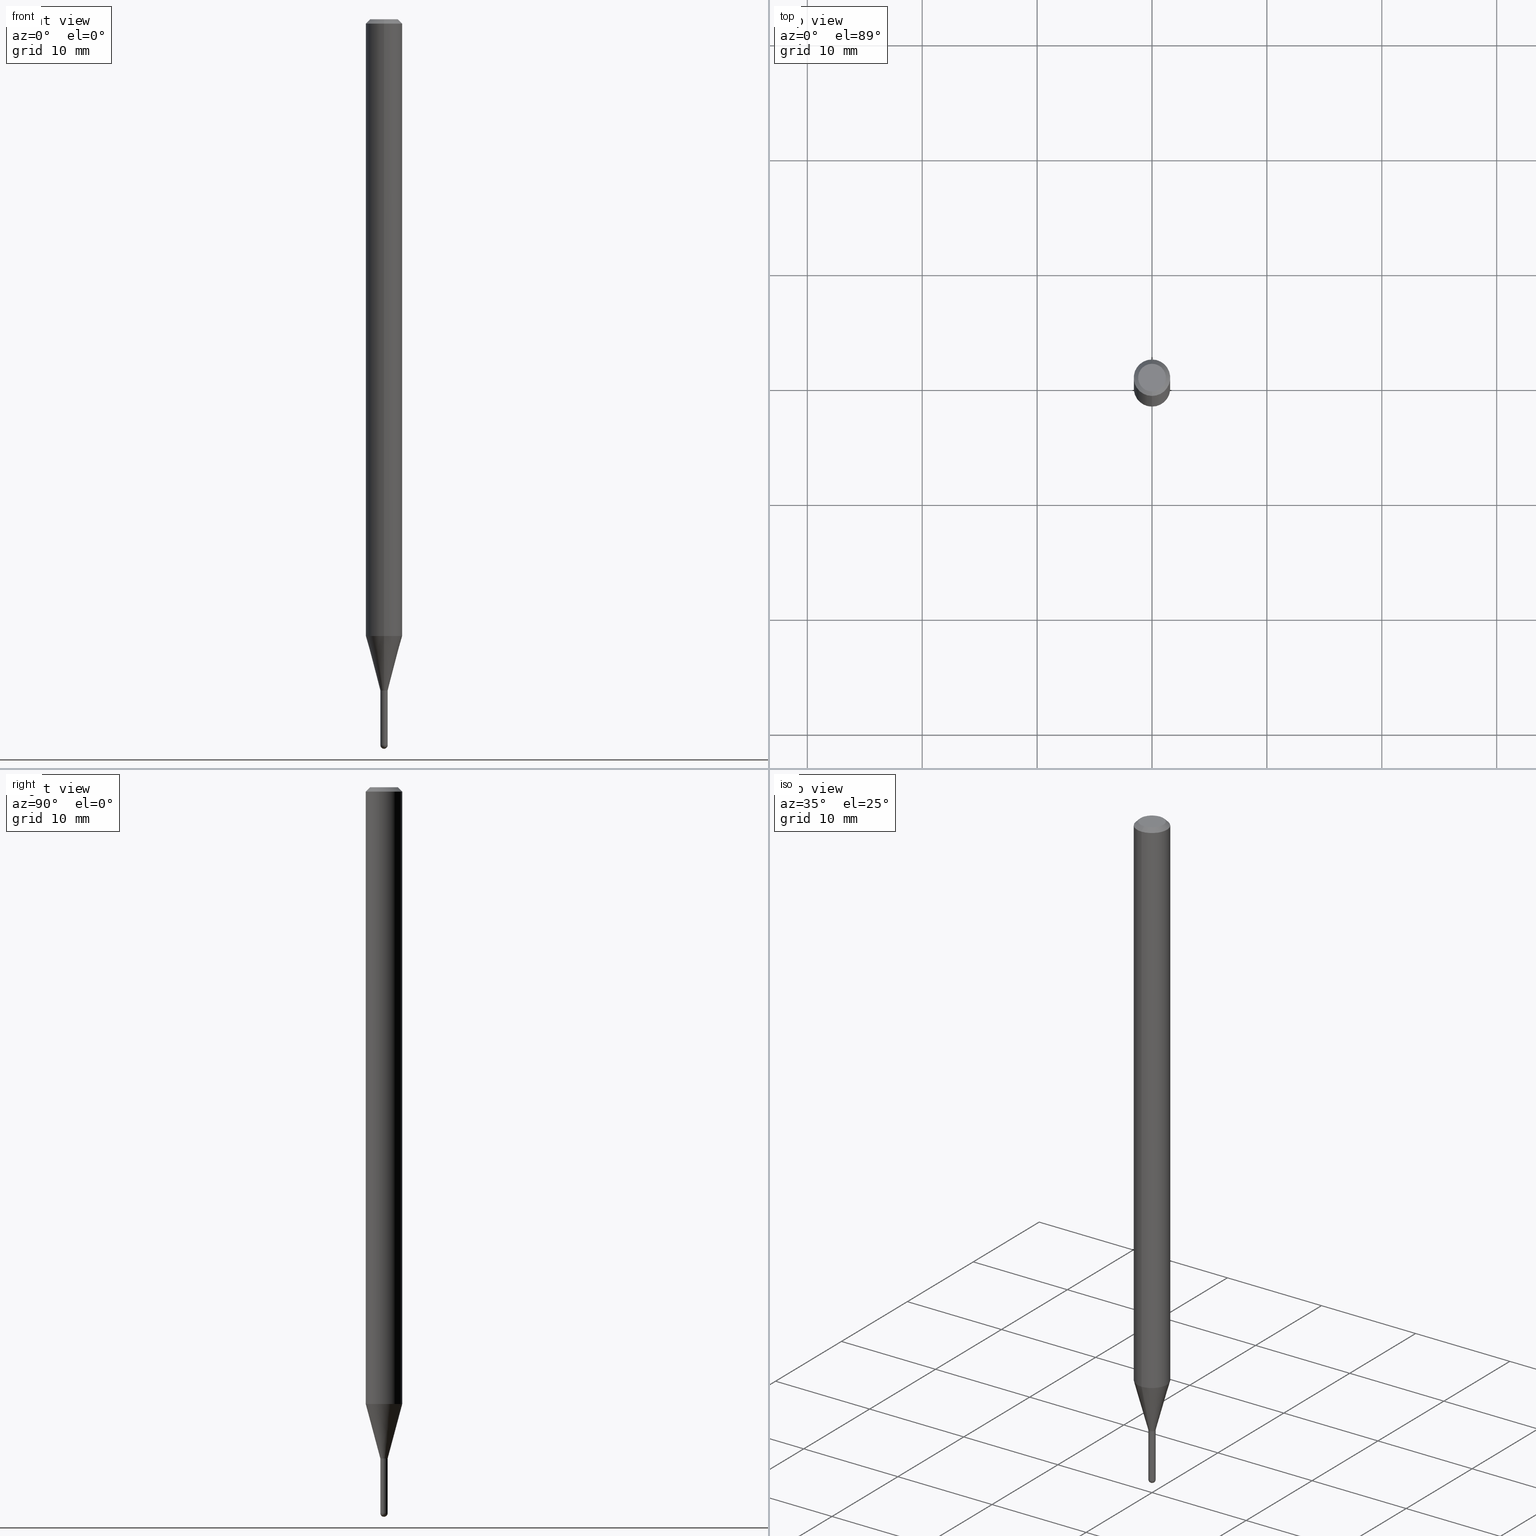
[diagram: canonical four-view strip — front | top / right | iso, engineering-drawing reading convention]
A machine part, canonical four-view strip (front | top / right | iso — engineering-drawing reading convention). The complete STEP part file that produces these views, byte-faithful:
ISO-10303-21;
HEADER;
FILE_DESCRIPTION (( 'STEP AP203' ),
    '1' );
FILE_NAME ('01530.STEP',
    '2024-03-07T19:37:02',
    ( '' ),
    ( '' ),
    'SwSTEP 2.0',
    'SolidWorks 2023',
    '' );
FILE_SCHEMA (( 'CONFIG_CONTROL_DESIGN' ));
ENDSEC;

DATA;
#1 = FACE_OUTER_BOUND ( 'NONE', #423, .T. ) ;
#2 = ORIENTED_EDGE ( 'NONE', *, *, #482, .T. ) ;
#3 = DIRECTION ( 'NONE',  ( -6.982962677686265922E-15, -1.000000000000000000, 0.000000000000000000 ) ) ;
#4 = CC_DESIGN_PERSON_AND_ORGANIZATION_ASSIGNMENT ( #109, #420, ( #199 ) ) ;
#5 = ORIENTED_EDGE ( 'NONE', *, *, #36, .F. ) ;
#6 = VECTOR ( 'NONE', #95, 39.37007874015748143 ) ;
#7 = CARTESIAN_POINT ( 'NONE',  ( 6.083103655385528181E-29, -8.685059830372324987E-15, -2.487500000000000266 ) ) ;
#8 = ORIENTED_EDGE ( 'NONE', *, *, #301, .T. ) ;
#9 = CIRCLE ( 'NONE', #415, 0.06250000000000000000 ) ;
#10 = CARTESIAN_POINT ( 'NONE',  ( 2.168131523324565022E-46, -3.095319246305230809E-32, -8.865630581367204221E-18 ) ) ;
#11 = ORIENTED_EDGE ( 'NONE', *, *, #325, .T. ) ;
#12 = ADVANCED_FACE ( 'NONE', ( #54 ), #290, .F. ) ;
#13 = ADVANCED_FACE ( 'NONE', ( #176 ), #451, .T. ) ;
#14 = CARTESIAN_POINT ( 'NONE',  ( -8.728703347107781619E-17, -0.01249999999999992610, 4.364211910671376735E-17 ) ) ;
#15 = LINE ( 'NONE', #94, #296 ) ;
#16 = APPROVAL_PERSON_ORGANIZATION ( #386, #61, #34 ) ;
#17 = FACE_OUTER_BOUND ( 'NONE', #194, .T. ) ;
#18 = EDGE_LOOP ( 'NONE', ( #190, #226, #120, #115 ) ) ;
#19 = CARTESIAN_POINT ( 'NONE',  ( -8.728703347101995817E-17, -0.01250000000000772542, -2.299500000000000099 ) ) ;
#20 = CIRCLE ( 'NONE', #306, 0.01250000000000020019 ) ;
#21 = DATE_AND_TIME ( #264, #425 ) ;
#22 = AXIS2_PLACEMENT_3D ( 'NONE', #289, #97, #250 ) ;
#23 = DIRECTION ( 'NONE',  ( 2.445546882904530641E-29, -3.491369528537121997E-15, -1.000000000000000000 ) ) ;
#24 = EDGE_CURVE ( 'NONE', #434, #68, #318, .T. ) ;
#25 = CALENDAR_DATE ( 2024, 7, 3 ) ;
#26 = EDGE_CURVE ( 'NONE', #200, #436, #495, .T. ) ;
#27 = PERSON_AND_ORGANIZATION ( #303, #179 ) ;
#28 = CARTESIAN_POINT ( 'NONE',  ( -3.773273898774340269E-16, -0.04749999999999999362, 1.569744220241461175E-16 ) ) ;
#29 = LINE ( 'NONE', #461, #427 ) ;
#30 = AXIS2_PLACEMENT_3D ( 'NONE', #304, #382, #75 ) ;
#31 = APPROVAL_STATUS ( 'not_yet_approved' ) ;
#32 = DIRECTION ( 'NONE',  ( -2.445546882904530641E-29, 3.491369528537122392E-15, 1.000000000000000000 ) ) ;
#33 = AXIS2_PLACEMENT_3D ( 'NONE', #10, #134, #480 ) ;
#34 = APPROVAL_ROLE ( '' ) ;
#35 = DIRECTION ( 'NONE',  ( -2.445546882904530641E-29, 3.491369528537122392E-15, 1.000000000000000000 ) ) ;
#36 = EDGE_CURVE ( 'NONE', #373, #41, #136, .T. ) ;
#37 = FACE_OUTER_BOUND ( 'NONE', #313, .T. ) ;
#38 = EDGE_CURVE ( 'NONE', #235, #436, #15, .T. ) ;
#39 = ORIENTED_EDGE ( 'NONE', *, *, #419, .T. ) ;
#40 = DIRECTION ( 'NONE',  ( 1.000000000000000000, -6.982962677686292743E-15, 0.000000000000000000 ) ) ;
#41 = VERTEX_POINT ( 'NONE', #366 ) ;
#42 = CIRCLE ( 'NONE', #422, 0.04749999999999999362 ) ;
#43 = DIRECTION ( 'NONE',  ( 2.445546882904530641E-29, -3.491369528537122392E-15, -1.000000000000000000 ) ) ;
#44 = AXIS2_PLACEMENT_3D ( 'NONE', #478, #253, #178 ) ;
#45 = ORIENTED_EDGE ( 'NONE', *, *, #368, .F. ) ;
#46 = AXIS2_PLACEMENT_3D ( 'NONE', #488, #211, #62 ) ;
#47 = CYLINDRICAL_SURFACE ( 'NONE', #275, 0.01250000000000000243 ) ;
#48 = CARTESIAN_POINT ( 'NONE',  ( 0.000000000000000000, 0.000000000000000000, 0.000000000000000000 ) ) ;
#49 = EDGE_LOOP ( 'NONE', ( #432, #322, #118, #192 ) ) ;
#50 = CONICAL_SURFACE ( 'NONE', #272, 0.01200000000000000198, 0.7853981633969275844 ) ;
#51 = CARTESIAN_POINT ( 'NONE',  ( 5.624757830680421118E-29, -8.030149915635382250E-15, -2.300000000000000266 ) ) ;
#52 = ORIENTED_EDGE ( 'NONE', *, *, #406, .F. ) ;
#53 = DIRECTION ( 'NONE',  ( -2.445546882904530641E-29, 3.491369528537122392E-15, 1.000000000000000000 ) ) ;
#54 = FACE_OUTER_BOUND ( 'NONE', #247, .T. ) ;
#55 = MANIFOLD_SOLID_BREP ( 'Body-Move/Copy2[1]', #472 ) ;
#56 = DIRECTION ( 'NONE',  ( -2.445546882904530641E-29, 3.491369528537122392E-15, 1.000000000000000000 ) ) ;
#57 = DIRECTION ( 'NONE',  ( -2.445546882904530641E-29, 3.491369528537122392E-15, 1.000000000000000000 ) ) ;
#58 = LENGTH_MEASURE_WITH_UNIT ( LENGTH_MEASURE( 0.02539999999999999897 ), #144 );
#59 = DIRECTION ( 'NONE',  ( 6.982962677686266711E-15, 1.000000000000000000, 0.000000000000000000 ) ) ;
#60 = AXIS2_PLACEMENT_3D ( 'NONE', #270, #231, #77 ) ;
#61 = APPROVAL ( #31, 'UNSPECIFIED' ) ;
#62 = DIRECTION ( 'NONE',  ( -6.982962677686265922E-15, -1.000000000000000000, 3.491369528537121997E-15 ) ) ;
#63 = PERSON_AND_ORGANIZATION_ROLE ( 'design_supplier' ) ;
#64 = CC_DESIGN_APPROVAL ( #203, ( #355 ) ) ;
#65 = LINE ( 'NONE', #137, #487 ) ;
#66 = DATE_AND_TIME ( #25, #285 ) ;
#67 = ADVANCED_FACE ( 'NONE', ( #483 ), #402, .T. ) ;
#68 = VERTEX_POINT ( 'NONE', #274 ) ;
#69 = PERSON_AND_ORGANIZATION ( #303, #179 ) ;
#70 = CIRCLE ( 'NONE', #330, 0.06250000000000000000 ) ;
#71 = VERTEX_POINT ( 'NONE', #466 ) ;
#72 = APPROVAL_DATE_TIME ( #343, #61 ) ;
#73 = CARTESIAN_POINT ( 'NONE',  ( 6.083103655385528181E-29, -8.685059830372324987E-15, -2.487500000000000266 ) ) ;
#74 = AXIS2_PLACEMENT_3D ( 'NONE', #216, #23, #180 ) ;
#75 = DIRECTION ( 'NONE',  ( -6.982962677686265922E-15, -1.000000000000000000, 3.491369528537121997E-15 ) ) ;
#76 = AXIS2_PLACEMENT_3D ( 'NONE', #171, #327, #251 ) ;
#77 = DIRECTION ( 'NONE',  ( 6.982962677686265922E-15, 1.000000000000000000, -3.483106191921935554E-15 ) ) ;
#78 = VECTOR ( 'NONE', #195, 39.37007874015748143 ) ;
#79 = EDGE_CURVE ( 'NONE', #204, #200, #225, .T. ) ;
#80 = DIRECTION ( 'NONE',  ( -2.445546882904530641E-29, 3.491369528537121997E-15, 1.000000000000000000 ) ) ;
#81 = VERTEX_POINT ( 'NONE', #28 ) ;
#82 = CARTESIAN_POINT ( 'NONE',  ( 3.668320324356798308E-31, -5.237054292805686472E-17, -0.01500000000000000812 ) ) ;
#83 = CC_DESIGN_SECURITY_CLASSIFICATION ( #358, ( #199 ) ) ;
#84 = EDGE_CURVE ( 'NONE', #436, #200, #117, .T. ) ;
#85 = EDGE_LOOP ( 'NONE', ( #438, #405, #467, #356 ) ) ;
#86 = APPROVAL ( #379, 'UNSPECIFIED' ) ;
#87 = CARTESIAN_POINT ( 'NONE',  ( -8.379555213217896017E-17, -0.01200000000000803375, -2.300000000000000266 ) ) ;
#88 = ORIENTED_EDGE ( 'NONE', *, *, #347, .T. ) ;
#89 = CARTESIAN_POINT ( 'NONE',  ( 5.168412569715866303E-29, -7.378651492210488273E-15, -2.113397459621562557 ) ) ;
#90 = CIRCLE ( 'NONE', #398, 0.01250000000000000243 ) ;
#91 = ORIENTED_EDGE ( 'NONE', *, *, #24, .F. ) ;
#92 = DIRECTION ( 'NONE',  ( 1.000000000000000000, -6.982962677686294321E-15, 0.000000000000000000 ) ) ;
#93 = ORIENTED_EDGE ( 'NONE', *, *, #347, .F. ) ;
#94 = CARTESIAN_POINT ( 'NONE',  ( -8.379555213217896017E-17, -0.01200000000000803375, -2.300000000000000266 ) ) ;
#95 = DIRECTION ( 'NONE',  ( -2.445546882904530641E-29, 3.491369528537121997E-15, 1.000000000000000000 ) ) ;
#96 = ADVANCED_FACE ( 'NONE', ( #349 ), #50, .T. ) ;
#97 = DIRECTION ( 'NONE',  ( -2.445468806185136597E-29, 3.491481338843145583E-15, 1.000000000000000000 ) ) ;
#98 = CARTESIAN_POINT ( 'NONE',  ( 8.728703347113457720E-17, 0.01249999999999197066, -2.300000000000000266 ) ) ;
#99 = DATE_AND_TIME ( #450, #108 ) ;
#100 = CARTESIAN_POINT ( 'NONE',  ( 8.526512829126826740E-17, 0.01199999999999197021, -2.300000000000000266 ) ) ;
#101 = AXIS2_PLACEMENT_3D ( 'NONE', #48, #155, #153 ) ;
#102 = DIRECTION ( 'NONE',  ( -6.982962677686266711E-15, -1.000000000000000000, 3.491369528537122786E-15 ) ) ;
#103 = DATE_AND_TIME ( #456, #492 ) ;
#104 = AXIS2_PLACEMENT_3D ( 'NONE', #345, #35, #191 ) ;
#105 = CARTESIAN_POINT ( 'NONE',  ( 4.440892098501145824E-16, 0.06249999999999995143, -0.01500000000000022669 ) ) ;
#106 = EDGE_CURVE ( 'NONE', #346, #338, #341, .T. ) ;
#107 = EDGE_CURVE ( 'NONE', #351, #464, #384, .T. ) ;
#108 = LOCAL_TIME ( 14, 37, 2.000000000000000000, #292 ) ;
#109 = PERSON_AND_ORGANIZATION ( #303, #179 ) ;
#110 = CYLINDRICAL_SURFACE ( 'NONE', #186, 0.01249999999999992610 ) ;
#111 = AXIS2_PLACEMENT_3D ( 'NONE', #332, #496, #493 ) ;
#112 = VECTOR ( 'NONE', #169, 39.37007874015748854 ) ;
#113 = FACE_OUTER_BOUND ( 'NONE', #18, .T. ) ;
#114 = APPROVAL_PERSON_ORGANIZATION ( #221, #86, #334 ) ;
#115 = ORIENTED_EDGE ( 'NONE', *, *, #107, .F. ) ;
#116 = DIRECTION ( 'NONE',  ( -2.445468806185136597E-29, 3.491481338843145583E-15, 1.000000000000000000 ) ) ;
#117 = CIRCLE ( 'NONE', #385, 0.01249999999999965375 ) ;
#118 = ORIENTED_EDGE ( 'NONE', *, *, #38, .T. ) ;
#119 = DIRECTION ( 'NONE',  ( -2.445546882904530641E-29, 3.491369528537122392E-15, 1.000000000000000000 ) ) ;
#120 = ORIENTED_EDGE ( 'NONE', *, *, #503, .T. ) ;
#121 = PRODUCT ( '01530', '01530', '', ( #148 ) ) ;
#122 = LINE ( 'NONE', #394, #112 ) ;
#123 = EDGE_CURVE ( 'NONE', #338, #173, #29, .T. ) ;
#124 = CC_DESIGN_DATE_AND_TIME_ASSIGNMENT ( #99, #252, ( #358 ) ) ;
#125 = ORIENTED_EDGE ( 'NONE', *, *, #315, .T. ) ;
#126 = CARTESIAN_POINT ( 'NONE',  ( 6.083103655385528181E-29, -8.685059830372324987E-15, -2.487500000000000266 ) ) ;
#127 = AXIS2_PLACEMENT_3D ( 'NONE', #73, #430, #229 ) ;
#128 = ORIENTED_EDGE ( 'NONE', *, *, #222, .F. ) ;
#129 = DIRECTION ( 'NONE',  ( -6.982962677686265922E-15, -1.000000000000000000, 4.370956789862821150E-15 ) ) ;
#130 = AXIS2_PLACEMENT_3D ( 'NONE', #82, #43, #284 ) ;
#131 = EDGE_LOOP ( 'NONE', ( #481, #212, #286, #156 ) ) ;
#132 = DIRECTION ( 'NONE',  ( -2.445546882904530641E-29, 3.491369528537121997E-15, 1.000000000000000000 ) ) ;
#133 = EDGE_LOOP ( 'NONE', ( #329, #39 ) ) ;
#134 = DIRECTION ( 'NONE',  ( -2.445546882904530641E-29, 3.491369528537122392E-15, 1.000000000000000000 ) ) ;
#135 = EDGE_CURVE ( 'NONE', #173, #403, #202, .T. ) ;
#136 = LINE ( 'NONE', #408, #6 ) ;
#137 = CARTESIAN_POINT ( 'NONE',  ( -8.728703347102347107E-17, -0.01250000000000823022, -2.300000000000000266 ) ) ;
#138 = ORIENTED_EDGE ( 'NONE', *, *, #431, .T. ) ;
#139 = PERSON_AND_ORGANIZATION_ROLE ( 'classification_officer' ) ;
#140 = CONICAL_SURFACE ( 'NONE', #111, 0.01200000000000000198, 0.7853981633969275844 ) ;
#141 = CARTESIAN_POINT ( 'NONE',  ( 5.624757830680421118E-29, -8.030149915635382250E-15, -2.300000000000000266 ) ) ;
#142 = EDGE_LOOP ( 'NONE', ( #163, #88, #307, #52 ) ) ;
#143 = CC_DESIGN_PERSON_AND_ORGANIZATION_ASSIGNMENT ( #27, #217, ( #121 ) ) ;
#144 =( LENGTH_UNIT ( ) NAMED_UNIT ( * ) SI_UNIT ( $, .METRE. ) );
#145 = DIRECTION ( 'NONE',  ( -2.445546882904530641E-29, 3.491369528537122392E-15, 1.000000000000000000 ) ) ;
#146 = APPROVAL_STATUS ( 'not_yet_approved' ) ;
#147 = CARTESIAN_POINT ( 'NONE',  ( -4.287811248607203282E-16, -0.06250000000000005551, -0.01499999999999979128 ) ) ;
#148 = MECHANICAL_CONTEXT ( 'NONE', #149, 'mechanical' ) ;
#149 = APPLICATION_CONTEXT ( 'configuration controlled 3d designs of mechanical parts and assemblies' ) ;
#150 = ORIENTED_EDGE ( 'NONE', *, *, #460, .F. ) ;
#151 = PERSON_AND_ORGANIZATION_ROLE ( 'creator' ) ;
#152 = ADVANCED_FACE ( 'NONE', ( #391 ), #110, .F. ) ;
#153 = DIRECTION ( 'NONE',  ( -6.982962677686265922E-15, -1.000000000000000000, 3.491369528537121997E-15 ) ) ;
#154 = DIRECTION ( 'NONE',  ( -6.982962677686266711E-15, -1.000000000000000000, 3.491369528537121997E-15 ) ) ;
#155 = DIRECTION ( 'NONE',  ( -2.445546882904530641E-29, 3.491369528537122392E-15, 1.000000000000000000 ) ) ;
#156 = ORIENTED_EDGE ( 'NONE', *, *, #38, .F. ) ;
#157 = CARTESIAN_POINT ( 'NONE',  ( 4.364351673553919652E-16, 0.06249999999999995143, -0.01500000000000022669 ) ) ;
#158 = ORIENTED_EDGE ( 'NONE', *, *, #174, .F. ) ;
#159 = ADVANCED_FACE ( 'NONE', ( #37 ), #504, .T. ) ;
#160 = EDGE_LOOP ( 'NONE', ( #187, #8, #266, #278, #209 ) ) ;
#161 = DIRECTION ( 'NONE',  ( -2.445468806185136597E-29, 3.491481338843145583E-15, 1.000000000000000000 ) ) ;
#162 = AXIS2_PLACEMENT_3D ( 'NONE', #98, #486, #446 ) ;
#163 = ORIENTED_EDGE ( 'NONE', *, *, #352, .T. ) ;
#164 = CARTESIAN_POINT ( 'NONE',  ( -8.728703347102347107E-17, -0.01250000000000823022, -2.300000000000000266 ) ) ;
#165 = ORIENTED_EDGE ( 'NONE', *, *, #406, .T. ) ;
#166 = CARTESIAN_POINT ( 'NONE',  ( 4.440892098501140893E-16, 0.06249999999999260314, -2.113397459621563002 ) ) ;
#167 = CONICAL_SURFACE ( 'NONE', #60, 0.06250000000000000000, 0.7853981633974483900 ) ;
#168 = ORIENTED_EDGE ( 'NONE', *, *, #79, .F. ) ;
#169 = DIRECTION ( 'NONE',  ( 1.839019923739647253E-15, 0.2588190451025315642, 0.9659258262890653146 ) ) ;
#170 = ADVANCED_FACE ( 'NONE', ( #340 ), #342, .F. ) ;
#171 = CARTESIAN_POINT ( 'NONE',  ( 6.082034697524054086E-29, -8.686590638871258861E-15, -2.487500000000000266 ) ) ;
#172 = PLANE ( 'NONE',  #74 ) ;
#173 = VERTEX_POINT ( 'NONE', #185 ) ;
#174 = EDGE_CURVE ( 'NONE', #434, #346, #383, .T. ) ;
#175 = CYLINDRICAL_SURFACE ( 'NONE', #465, 0.01249999999999992610 ) ;
#176 = FACE_OUTER_BOUND ( 'NONE', #142, .T. ) ;
#177 = AXIS2_PLACEMENT_3D ( 'NONE', #198, #357, #444 ) ;
#178 = DIRECTION ( 'NONE',  ( -6.982962677686265922E-15, -1.000000000000000000, 0.000000000000000000 ) ) ;
#179 = ORGANIZATION ( 'UNSPECIFIED', 'UNSPECIFIED', '' ) ;
#180 = DIRECTION ( 'NONE',  ( 6.982962677686265922E-15, 1.000000000000000000, -3.491369528537121997E-15 ) ) ;
#181 = DIRECTION ( 'NONE',  ( -6.982962677686266711E-15, -1.000000000000000000, 3.491369528537121997E-15 ) ) ;
#182 = APPLICATION_PROTOCOL_DEFINITION ( 'international standard', 'config_control_design', 1994, #149 ) ;
#183 = ADVANCED_FACE ( 'NONE', ( #113 ), #167, .T. ) ;
#184 = DATE_TIME_ROLE ( 'creation_date' ) ;
#185 = CARTESIAN_POINT ( 'NONE',  ( -0.01250000000000000069, -8.268915612885767055E-15, -2.300000000000000266 ) ) ;
#186 = AXIS2_PLACEMENT_3D ( 'NONE', #232, #119, #154 ) ;
#187 = ORIENTED_EDGE ( 'NONE', *, *, #123, .F. ) ;
#188 = SHAPE_DEFINITION_REPRESENTATION ( #389, #421 ) ;
#189 = DIRECTION ( 'NONE',  ( -2.445468806185136877E-29, 3.491481338843145188E-15, 1.000000000000000000 ) ) ;
#190 = ORIENTED_EDGE ( 'NONE', *, *, #419, .F. ) ;
#191 = DIRECTION ( 'NONE',  ( -6.982962677686265922E-15, -1.000000000000000000, 0.000000000000000000 ) ) ;
#192 = ORIENTED_EDGE ( 'NONE', *, *, #26, .F. ) ;
#193 = DIRECTION ( 'NONE',  ( 6.982962677686266711E-15, 1.000000000000000000, 0.000000000000000000 ) ) ;
#194 = EDGE_LOOP ( 'NONE', ( #45, #393, #499, #241 ) ) ;
#195 = DIRECTION ( 'NONE',  ( -2.445468806185136877E-29, 3.491481338843145188E-15, 1.000000000000000000 ) ) ;
#196 = VECTOR ( 'NONE', #293, 39.37007874015748143 ) ;
#197 = ORIENTED_EDGE ( 'NONE', *, *, #498, .F. ) ;
#198 = CARTESIAN_POINT ( 'NONE',  ( 5.624757830680421118E-29, -8.030149915635382250E-15, -2.300000000000000266 ) ) ;
#199 = PRODUCT_DEFINITION_FORMATION_WITH_SPECIFIED_SOURCE ( 'ANY', '', #121, .NOT_KNOWN. ) ;
#200 = VERTEX_POINT ( 'NONE', #390 ) ;
#201 = CARTESIAN_POINT ( 'NONE',  ( 0.01250000000000000243, -8.445020488326859174E-15, -2.487500000000000266 ) ) ;
#202 = CIRCLE ( 'NONE', #254, 0.01250000000000000069 ) ;
#203 = APPROVAL ( #146, 'UNSPECIFIED' ) ;
#204 = VERTEX_POINT ( 'NONE', #387 ) ;
#205 = DIRECTION ( 'NONE',  ( -2.445468806185136597E-29, 3.491481338843145583E-15, 1.000000000000000000 ) ) ;
#206 = AXIS2_PLACEMENT_3D ( 'NONE', #126, #473, #40 ) ;
#207 = CARTESIAN_POINT ( 'NONE',  ( 5.624757830680421118E-29, -8.030149915635382250E-15, -2.300000000000000266 ) ) ;
#208 = CYLINDRICAL_SURFACE ( 'NONE', #46, 0.06250000000000000000 ) ;
#209 = ORIENTED_EDGE ( 'NONE', *, *, #135, .F. ) ;
#210 = EDGE_CURVE ( 'NONE', #71, #235, #321, .T. ) ;
#211 = DIRECTION ( 'NONE',  ( -2.445546882904530641E-29, 3.491369528537122392E-15, 1.000000000000000000 ) ) ;
#212 = ORIENTED_EDGE ( 'NONE', *, *, #411, .T. ) ;
#213 = DIRECTION ( 'NONE',  ( -2.445546882904530641E-29, 3.491369528537122392E-15, 1.000000000000000000 ) ) ;
#214 = FACE_OUTER_BOUND ( 'NONE', #443, .T. ) ;
#215 = DIRECTION ( 'NONE',  ( 0.000000000000000000, 0.000000000000000000, 1.000000000000000000 ) ) ;
#216 = CARTESIAN_POINT ( 'NONE',  ( 3.316907271900976096E-16, 0.04749999999999999362, -1.702728678961969146E-16 ) ) ;
#217 = PERSON_AND_ORGANIZATION_ROLE ( 'design_owner' ) ;
#218 = VECTOR ( 'NONE', #326, 39.37007874015748143 ) ;
#219 = LINE ( 'NONE', #14, #218 ) ;
#220 = ADVANCED_FACE ( 'NONE', ( #1 ), #233, .T. ) ;
#221 = PERSON_AND_ORGANIZATION ( #303, #179 ) ;
#222 = EDGE_CURVE ( 'NONE', #239, #373, #9, .T. ) ;
#223 = ORIENTED_EDGE ( 'NONE', *, *, #84, .T. ) ;
#224 = PERSON_AND_ORGANIZATION ( #303, #179 ) ;
#225 = LINE ( 'NONE', #468, #362 ) ;
#226 = ORIENTED_EDGE ( 'NONE', *, *, #460, .T. ) ;
#227 = ADVANCED_FACE ( 'NONE', ( #243 ), #238, .T. ) ;
#228 = COORDINATED_UNIVERSAL_TIME_OFFSET ( 5, 0, .BEHIND. ) ;
#229 = DIRECTION ( 'NONE',  ( 1.000000000000000000, -6.982962677686292743E-15, 0.000000000000000000 ) ) ;
#230 = AXIS2_PLACEMENT_3D ( 'NONE', #324, #57, #371 ) ;
#231 = DIRECTION ( 'NONE',  ( 2.445546882904530641E-29, -3.491369528537122392E-15, -1.000000000000000000 ) ) ;
#232 = CARTESIAN_POINT ( 'NONE',  ( 0.000000000000000000, 0.000000000000000000, 0.000000000000000000 ) ) ;
#233 = CONICAL_SURFACE ( 'NONE', #130, 0.06250000000000000000, 0.7853981633974483900 ) ;
#234 = DIRECTION ( 'NONE',  ( -6.982962677686265922E-15, -1.000000000000000000, 0.000000000000000000 ) ) ;
#235 = VERTEX_POINT ( 'NONE', #87 ) ;
#236 = EDGE_CURVE ( 'NONE', #235, #71, #257, .T. ) ;
#237 = CC_DESIGN_APPROVAL ( #61, ( #358 ) ) ;
#238 = CYLINDRICAL_SURFACE ( 'NONE', #344, 0.01250000000000000243 ) ;
#239 = VERTEX_POINT ( 'NONE', #166 ) ;
#240 = CARTESIAN_POINT ( 'NONE',  ( 0.01250000000000000243, -8.728703347107835853E-17, 6.095220969744921493E-31 ) ) ;
#241 = ORIENTED_EDGE ( 'NONE', *, *, #482, .F. ) ;
#242 = CIRCLE ( 'NONE', #44, 0.01250000000000020019 ) ;
#243 = FACE_OUTER_BOUND ( 'NONE', #160, .T. ) ;
#244 = CIRCLE ( 'NONE', #22, 0.01250000000000000243 ) ;
#245 = ORIENTED_EDGE ( 'NONE', *, *, #106, .T. ) ;
#246 = DIRECTION ( 'NONE',  ( -2.445468806185136597E-29, 3.491481338843145583E-15, 1.000000000000000000 ) ) ;
#247 = EDGE_LOOP ( 'NONE', ( #125, #395 ) ) ;
#248 = EDGE_CURVE ( 'NONE', #319, #403, #353, .T. ) ;
#249 = DIRECTION ( 'NONE',  ( -6.982962677686265922E-15, -1.000000000000000000, 0.000000000000000000 ) ) ;
#250 = DIRECTION ( 'NONE',  ( 1.000000000000000000, -6.982962677686292743E-15, 0.000000000000000000 ) ) ;
#251 = DIRECTION ( 'NONE',  ( -7.105427357601001070E-15, -1.000000000000000000, 0.000000000000000000 ) ) ;
#252 = DATE_TIME_ROLE ( 'classification_date' ) ;
#253 = DIRECTION ( 'NONE',  ( -2.445546882904530641E-29, 3.491369528537122392E-15, 1.000000000000000000 ) ) ;
#254 = AXIS2_PLACEMENT_3D ( 'NONE', #305, #116, #310 ) ;
#255 = CARTESIAN_POINT ( 'NONE',  ( 0.000000000000000000, 0.000000000000000000, 0.000000000000000000 ) ) ;
#256 = CARTESIAN_POINT ( 'NONE',  ( 6.113137536532105565E-29, -8.729468751357331880E-15, -2.500000000000000000 ) ) ;
#257 = CIRCLE ( 'NONE', #299, 0.01200000000000000198 ) ;
#258 = APPROVAL_DATE_TIME ( #103, #86 ) ;
#259 = UNCERTAINTY_MEASURE_WITH_UNIT (LENGTH_MEASURE( 1.000000000000000082E-05 ), #500, 'distance_accuracy_value', 'NONE');
#260 = CC_DESIGN_PERSON_AND_ORGANIZATION_ASSIGNMENT ( #497, #151, ( #355 ) ) ;
#261 = LINE ( 'NONE', #100, #196 ) ;
#262 = EDGE_CURVE ( 'NONE', #351, #81, #365, .T. ) ;
#263 = DIRECTION ( 'NONE',  ( 1.000000000000000000, 0.000000000000000000, 0.000000000000000000 ) ) ;
#264 = CALENDAR_DATE ( 2024, 7, 3 ) ;
#265 = EDGE_CURVE ( 'NONE', #239, #464, #439, .T. ) ;
#266 = ORIENTED_EDGE ( 'NONE', *, *, #498, .T. ) ;
#267 = CALENDAR_DATE ( 2024, 7, 3 ) ;
#268 = CARTESIAN_POINT ( 'NONE',  ( 6.082034697524054086E-29, -8.686590638871258861E-15, -2.487500000000000266 ) ) ;
#269 = AXIS2_PLACEMENT_3D ( 'NONE', #435, #361, #470 ) ;
#270 = CARTESIAN_POINT ( 'NONE',  ( 3.668320324356798308E-31, -5.237054292805686472E-17, -0.01500000000000000812 ) ) ;
#271 = ORIENTED_EDGE ( 'NONE', *, *, #24, .T. ) ;
#272 = AXIS2_PLACEMENT_3D ( 'NONE', #424, #32, #234 ) ;
#273 = DIRECTION ( 'NONE',  ( 6.982962677686265922E-15, 1.000000000000000000, 0.000000000000000000 ) ) ;
#274 = CARTESIAN_POINT ( 'NONE',  ( -8.881784196995158866E-17, -0.01250000000000867258, -2.487500000000000266 ) ) ;
#275 = AXIS2_PLACEMENT_3D ( 'NONE', #323, #246, #317 ) ;
#276 = ORIENTED_EDGE ( 'NONE', *, *, #262, .F. ) ;
#277 = CARTESIAN_POINT ( 'NONE',  ( -0.01250000000000000243, -8.268915612885767055E-15, -2.487500000000000266 ) ) ;
#278 = ORIENTED_EDGE ( 'NONE', *, *, #248, .T. ) ;
#279 = DIRECTION ( 'NONE',  ( -2.445468806185136597E-29, 3.491481338843145583E-15, 1.000000000000000000 ) ) ;
#280 = VERTEX_POINT ( 'NONE', #164 ) ;
#281 = CARTESIAN_POINT ( 'NONE',  ( 3.840629472727447874E-16, 0.04749999999999999362, -1.747056831868805136E-16 ) ) ;
#282 = VECTOR ( 'NONE', #132, 39.37007874015748143 ) ;
#283 = ORIENTED_EDGE ( 'NONE', *, *, #174, .T. ) ;
#284 = DIRECTION ( 'NONE',  ( 6.982962677686265922E-15, 1.000000000000000000, -3.483106191921935554E-15 ) ) ;
#285 = LOCAL_TIME ( 14, 37, 2.000000000000000000, #491 ) ;
#286 = ORIENTED_EDGE ( 'NONE', *, *, #84, .F. ) ;
#287 = CARTESIAN_POINT ( 'NONE',  ( 8.728703347113906385E-17, 0.01249999999999129932, -2.487500000000000266 ) ) ;
#288 = ORIENTED_EDGE ( 'NONE', *, *, #248, .F. ) ;
#289 = CARTESIAN_POINT ( 'NONE',  ( 6.083103655385528181E-29, -8.685059830372324987E-15, -2.487500000000000266 ) ) ;
#290 = PLANE ( 'NONE',  #162 ) ;
#291 = AXIS2_PLACEMENT_3D ( 'NONE', #295, #370, #59 ) ;
#292 = COORDINATED_UNIVERSAL_TIME_OFFSET ( 5, 0, .BEHIND. ) ;
#293 = DIRECTION ( 'NONE',  ( 5.024295867785445738E-15, 0.7071067811861817543, 0.7071067811869132802 ) ) ;
#294 =( NAMED_UNIT ( * ) SI_UNIT ( $, .STERADIAN. ) SOLID_ANGLE_UNIT ( ) );
#295 = CARTESIAN_POINT ( 'NONE',  ( 6.082034697524054086E-29, -8.686590638871258861E-15, -2.487500000000000266 ) ) ;
#296 = VECTOR ( 'NONE', #445, 39.37007874015748143 ) ;
#297 = COORDINATED_UNIVERSAL_TIME_OFFSET ( 5, 0, .BEHIND. ) ;
#298 = DIRECTION ( 'NONE',  ( -4.851104656540964275E-15, -0.7071067811865500152, -0.7071067811865450192 ) ) ;
#299 = AXIS2_PLACEMENT_3D ( 'NONE', #51, #400, #3 ) ;
#300 = ORIENTED_EDGE ( 'NONE', *, *, #503, .F. ) ;
#301 = EDGE_CURVE ( 'NONE', #338, #68, #429, .T. ) ;
#302 = LOCAL_TIME ( 14, 37, 2.000000000000000000, #228 ) ;
#303 = PERSON ( 'UNSPECIFIED', 'UNSPECIFIED', 'UNSPECIFIED', ('UNSPECIFIED'), ('UNSPECIFIED'), ('UNSPECIFIED') ) ;
#304 = CARTESIAN_POINT ( 'NONE',  ( 5.624757830680421118E-29, -8.030149915635382250E-15, -2.300000000000000266 ) ) ;
#305 = CARTESIAN_POINT ( 'NONE',  ( 5.624578254225815069E-29, -8.030407079339235116E-15, -2.300000000000000266 ) ) ;
#306 = AXIS2_PLACEMENT_3D ( 'NONE', #141, #145, #417 ) ;
#307 = ORIENTED_EDGE ( 'NONE', *, *, #325, .F. ) ;
#308 = CIRCLE ( 'NONE', #333, 0.06250000000000000000 ) ;
#309 = CARTESIAN_POINT ( 'NONE',  ( 5.623535057238968063E-29, -8.028404230871113939E-15, -2.299500000000000099 ) ) ;
#310 = DIRECTION ( 'NONE',  ( 1.000000000000000000, -6.982962677686294321E-15, 0.000000000000000000 ) ) ;
#311 = ADVANCED_FACE ( 'NONE', ( #314 ), #47, .T. ) ;
#312 = EDGE_LOOP ( 'NONE', ( #399, #479 ) ) ;
#313 = EDGE_LOOP ( 'NONE', ( #158, #271, #316, #363 ) ) ;
#314 = FACE_OUTER_BOUND ( 'NONE', #512, .T. ) ;
#315 = EDGE_CURVE ( 'NONE', #403, #173, #507, .T. ) ;
#316 = ORIENTED_EDGE ( 'NONE', *, *, #301, .F. ) ;
#317 = DIRECTION ( 'NONE',  ( 1.000000000000000000, -6.982962677686267499E-15, 4.876176775795936353E-29 ) ) ;
#318 = CIRCLE ( 'NONE', #76, 0.01249999999999996947 ) ;
#319 = VERTEX_POINT ( 'NONE', #201 ) ;
#320 = DIRECTION ( 'NONE',  ( -2.445546882904530641E-29, 3.491369528537122392E-15, 1.000000000000000000 ) ) ;
#321 = CIRCLE ( 'NONE', #104, 0.01200000000000000198 ) ;
#322 = ORIENTED_EDGE ( 'NONE', *, *, #210, .T. ) ;
#323 = CARTESIAN_POINT ( 'NONE',  ( 0.000000000000000000, 0.000000000000000000, 0.000000000000000000 ) ) ;
#324 = CARTESIAN_POINT ( 'NONE',  ( 5.623535057238968063E-29, -8.028404230871113939E-15, -2.299500000000000099 ) ) ;
#325 = EDGE_CURVE ( 'NONE', #373, #239, #490, .T. ) ;
#326 = DIRECTION ( 'NONE',  ( -2.445546882904530641E-29, 3.491369528537121997E-15, 1.000000000000000000 ) ) ;
#327 = DIRECTION ( 'NONE',  ( -1.000000000000000000, 7.105427357601001070E-15, -4.926315508542082329E-29 ) ) ;
#328 = CARTESIAN_POINT ( 'NONE',  ( 2.168131523324565022E-46, -3.095319246305230809E-32, -8.865630581367204221E-18 ) ) ;
#329 = ORIENTED_EDGE ( 'NONE', *, *, #262, .T. ) ;
#330 = AXIS2_PLACEMENT_3D ( 'NONE', #455, #53, #413 ) ;
#331 = CONICAL_SURFACE ( 'NONE', #177, 0.01250000000000020019, 0.2617993877991571794 ) ;
#332 = CARTESIAN_POINT ( 'NONE',  ( 5.624757830680421118E-29, -8.030149915635382250E-15, -2.300000000000000266 ) ) ;
#333 = AXIS2_PLACEMENT_3D ( 'NONE', #409, #56, #372 ) ;
#334 = APPROVAL_ROLE ( '' ) ;
#335 = LINE ( 'NONE', #147, #359 ) ;
#336 = ADVANCED_FACE ( 'NONE', ( #404 ), #331, .T. ) ;
#337 =( NAMED_UNIT ( * ) PLANE_ANGLE_UNIT ( ) SI_UNIT ( $, .RADIAN. ) );
#338 = VERTEX_POINT ( 'NONE', #277 ) ;
#339 = PERSON_AND_ORGANIZATION ( #303, #179 ) ;
#340 = FACE_OUTER_BOUND ( 'NONE', #312, .T. ) ;
#341 = CIRCLE ( 'NONE', #127, 0.01250000000000000243 ) ;
#342 = PLANE ( 'NONE',  #30 ) ;
#343 = DATE_AND_TIME ( #267, #302 ) ;
#344 = AXIS2_PLACEMENT_3D ( 'NONE', #437, #161, #364 ) ;
#345 = CARTESIAN_POINT ( 'NONE',  ( 5.624757830680421118E-29, -8.030149915635382250E-15, -2.300000000000000266 ) ) ;
#346 = VERTEX_POINT ( 'NONE', #287 ) ;
#347 = EDGE_CURVE ( 'NONE', #204, #239, #122, .T. ) ;
#348 = EDGE_CURVE ( 'NONE', #319, #346, #90, .T. ) ;
#349 = FACE_OUTER_BOUND ( 'NONE', #49, .T. ) ;
#350 = EDGE_LOOP ( 'NONE', ( #93, #474, #165, #128 ) ) ;
#351 = VERTEX_POINT ( 'NONE', #281 ) ;
#352 = EDGE_CURVE ( 'NONE', #280, #204, #242, .T. ) ;
#353 = LINE ( 'NONE', #240, #78 ) ;
#354 = CC_DESIGN_APPROVAL ( #86, ( #199 ) ) ;
#355 = PRODUCT_DEFINITION ( 'UNKNOWN', '', #199, #418 ) ;
#356 = ORIENTED_EDGE ( 'NONE', *, *, #431, .F. ) ;
#357 = DIRECTION ( 'NONE',  ( -2.445546882904530641E-29, 3.491369528537122392E-15, 1.000000000000000000 ) ) ;
#358 = SECURITY_CLASSIFICATION ( '', '', #381 ) ;
#359 = VECTOR ( 'NONE', #298, 39.37007874015748143 ) ;
#360 = ORIENTED_EDGE ( 'NONE', *, *, #352, .F. ) ;
#361 = DIRECTION ( 'NONE',  ( -2.445546882904530641E-29, 3.491369528537122392E-15, 1.000000000000000000 ) ) ;
#362 = VECTOR ( 'NONE', #80, 39.37007874015748143 ) ;
#363 = ORIENTED_EDGE ( 'NONE', *, *, #106, .F. ) ;
#364 = DIRECTION ( 'NONE',  ( 1.000000000000000000, -6.982962677686267499E-15, 4.876176775795936353E-29 ) ) ;
#365 = CIRCLE ( 'NONE', #33, 0.04749999999999999362 ) ;
#366 = CARTESIAN_POINT ( 'NONE',  ( -4.364351673553912750E-16, -0.06250000000000005551, -0.01499999999999979128 ) ) ;
#367 = DIRECTION ( 'NONE',  ( -2.445546882904530641E-29, 3.491369528537122392E-15, 1.000000000000000000 ) ) ;
#368 = EDGE_CURVE ( 'NONE', #204, #280, #20, .T. ) ;
#369 = ADVANCED_FACE ( 'NONE', ( #214 ), #448, .T. ) ;
#370 = DIRECTION ( 'NONE',  ( -1.000000000000000000, 6.982962677686266711E-15, -4.883557194083112901E-29 ) ) ;
#371 = DIRECTION ( 'NONE',  ( -6.982962677686265922E-15, -1.000000000000000000, 0.000000000000000000 ) ) ;
#372 = DIRECTION ( 'NONE',  ( -6.982962677686265922E-15, -1.000000000000000000, 3.483106191921935554E-15 ) ) ;
#373 = VERTEX_POINT ( 'NONE', #375 ) ;
#374 = CC_DESIGN_PERSON_AND_ORGANIZATION_ASSIGNMENT ( #224, #63, ( #199 ) ) ;
#375 = CARTESIAN_POINT ( 'NONE',  ( -4.364351673553399497E-16, -0.06250000000000736911, -2.113397459621562557 ) ) ;
#376 =( GEOMETRIC_REPRESENTATION_CONTEXT ( 3 ) GLOBAL_UNCERTAINTY_ASSIGNED_CONTEXT ( ( #259 ) ) GLOBAL_UNIT_ASSIGNED_CONTEXT ( ( #500, #337, #294 ) ) REPRESENTATION_CONTEXT ( 'NONE', 'WORKASPACE' ) );
#377 = APPROVAL_ROLE ( '' ) ;
#378 = DIRECTION ( 'NONE',  ( -2.445546882904530641E-29, 3.491369528537122392E-15, 1.000000000000000000 ) ) ;
#379 = APPROVAL_STATUS ( 'not_yet_approved' ) ;
#380 = APPLICATION_CONTEXT ( 'configuration controlled 3d designs of mechanical parts and assemblies' ) ;
#381 = SECURITY_CLASSIFICATION_LEVEL ( 'unclassified' ) ;
#382 = DIRECTION ( 'NONE',  ( -2.445546882904530641E-29, 3.491369528537121997E-15, 1.000000000000000000 ) ) ;
#383 = CIRCLE ( 'NONE', #457, 0.01249999999999996947 ) ;
#384 = LINE ( 'NONE', #157, #412 ) ;
#385 = AXIS2_PLACEMENT_3D ( 'NONE', #309, #508, #509 ) ;
#386 = PERSON_AND_ORGANIZATION ( #303, #179 ) ;
#387 = CARTESIAN_POINT ( 'NONE',  ( 2.664535259100923364E-16, 0.01249999999999216842, -2.300000000000000266 ) ) ;
#388 = AXIS2_PLACEMENT_3D ( 'NONE', #396, #279, #92 ) ;
#389 = PRODUCT_DEFINITION_SHAPE ( 'NONE', 'NONE',  #355 ) ;
#390 = CARTESIAN_POINT ( 'NONE',  ( 8.881784197006598582E-17, 0.01249999999999158208, -2.299500000000000099 ) ) ;
#391 = FACE_OUTER_BOUND ( 'NONE', #449, .T. ) ;
#392 = ADVANCED_FACE ( 'NONE', ( #407 ), #140, .T. ) ;
#393 = ORIENTED_EDGE ( 'NONE', *, *, #79, .T. ) ;
#394 = CARTESIAN_POINT ( 'NONE',  ( 8.881784197007017664E-17, 0.01249999999999216842, -2.300000000000000266 ) ) ;
#395 = ORIENTED_EDGE ( 'NONE', *, *, #135, .T. ) ;
#396 = CARTESIAN_POINT ( 'NONE',  ( 5.624578254225815069E-29, -8.030407079339235116E-15, -2.300000000000000266 ) ) ;
#397 = MANIFOLD_SOLID_BREP ( 'Body-Move/Copy2[2]', #501 ) ;
#398 = AXIS2_PLACEMENT_3D ( 'NONE', #7, #205, #476 ) ;
#399 = ORIENTED_EDGE ( 'NONE', *, *, #236, .F. ) ;
#400 = DIRECTION ( 'NONE',  ( -2.445546882904530641E-29, 3.491369528537122392E-15, 1.000000000000000000 ) ) ;
#401 = AXIS2_PLACEMENT_3D ( 'NONE', #255, #215, #263 ) ;
#402 = CYLINDRICAL_SURFACE ( 'NONE', #101, 0.06250000000000000000 ) ;
#403 = VERTEX_POINT ( 'NONE', #484 ) ;
#404 = FACE_OUTER_BOUND ( 'NONE', #350, .T. ) ;
#405 = ORIENTED_EDGE ( 'NONE', *, *, #222, .T. ) ;
#406 = EDGE_CURVE ( 'NONE', #280, #373, #65, .T. ) ;
#407 = FACE_OUTER_BOUND ( 'NONE', #131, .T. ) ;
#408 = CARTESIAN_POINT ( 'NONE',  ( -4.364351673553916201E-16, -0.06250000000000000000, 2.182105955335701248E-16 ) ) ;
#409 = CARTESIAN_POINT ( 'NONE',  ( 3.668320324356798308E-31, -5.237054292805686472E-17, -0.01500000000000000812 ) ) ;
#410 = ORIENTED_EDGE ( 'NONE', *, *, #348, .T. ) ;
#411 = EDGE_CURVE ( 'NONE', #71, #200, #261, .T. ) ;
#412 = VECTOR ( 'NONE', #426, 39.37007874015748143 ) ;
#413 = DIRECTION ( 'NONE',  ( -6.982962677686265922E-15, -1.000000000000000000, 3.483106191921935554E-15 ) ) ;
#414 = APPROVAL_DATE_TIME ( #66, #203 ) ;
#415 = AXIS2_PLACEMENT_3D ( 'NONE', #89, #320, #129 ) ;
#416 = FACE_OUTER_BOUND ( 'NONE', #471, .T. ) ;
#417 = DIRECTION ( 'NONE',  ( -6.982962677686265922E-15, -1.000000000000000000, 0.000000000000000000 ) ) ;
#418 = DESIGN_CONTEXT ( 'detailed design', #380, 'design' ) ;
#419 = EDGE_CURVE ( 'NONE', #81, #351, #42, .T. ) ;
#420 = PERSON_AND_ORGANIZATION_ROLE ( 'creator' ) ;
#421 = ADVANCED_BREP_SHAPE_REPRESENTATION ( '01530', ( #55, #397, #401 ), #376 ) ;
#422 = AXIS2_PLACEMENT_3D ( 'NONE', #328, #378, #102 ) ;
#423 = EDGE_LOOP ( 'NONE', ( #150, #276, #469, #138 ) ) ;
#424 = CARTESIAN_POINT ( 'NONE',  ( 5.624757830680421118E-29, -8.030149915635382250E-15, -2.300000000000000266 ) ) ;
#425 = LOCAL_TIME ( 14, 37, 2.000000000000000000, #459 ) ;
#426 = DIRECTION ( 'NONE',  ( 4.937700262164548042E-15, 0.7071067811865451302, -0.7071067811865499042 ) ) ;
#427 = VECTOR ( 'NONE', #189, 39.37007874015748143 ) ;
#428 = CARTESIAN_POINT ( 'NONE',  ( 6.082034697524054086E-29, -8.686590638871258861E-15, -2.487500000000000266 ) ) ;
#429 = CIRCLE ( 'NONE', #206, 0.01250000000000000243 ) ;
#430 = DIRECTION ( 'NONE',  ( -2.445468806185136597E-29, 3.491481338843145583E-15, 1.000000000000000000 ) ) ;
#431 = EDGE_CURVE ( 'NONE', #464, #41, #70, .T. ) ;
#432 = ORIENTED_EDGE ( 'NONE', *, *, #411, .F. ) ;
#433 = CARTESIAN_POINT ( 'NONE',  ( 4.440892098500625669E-16, 0.06250000000000000000, -2.182105955335701248E-16 ) ) ;
#434 = VERTEX_POINT ( 'NONE', #256 ) ;
#435 = CARTESIAN_POINT ( 'NONE',  ( 5.168412569715866303E-29, -7.378651492210488273E-15, -2.113397459621562557 ) ) ;
#436 = VERTEX_POINT ( 'NONE', #19 ) ;
#437 = CARTESIAN_POINT ( 'NONE',  ( 0.000000000000000000, 0.000000000000000000, 0.000000000000000000 ) ) ;
#438 = ORIENTED_EDGE ( 'NONE', *, *, #265, .F. ) ;
#439 = LINE ( 'NONE', #433, #282 ) ;
#440 = APPROVAL_PERSON_ORGANIZATION ( #69, #203, #377 ) ;
#441 = PRODUCT_RELATED_PRODUCT_CATEGORY ( 'detail', '', ( #121 ) ) ;
#442 = ADVANCED_FACE ( 'NONE', ( #416 ), #208, .T. ) ;
#443 = EDGE_LOOP ( 'NONE', ( #91, #283, #489, #197 ) ) ;
#444 = DIRECTION ( 'NONE',  ( -6.982962677686265922E-15, -1.000000000000000000, 0.000000000000000000 ) ) ;
#445 = DIRECTION ( 'NONE',  ( -4.937700262161976356E-15, -0.7071067811861768693, 0.7071067811869181652 ) ) ;
#446 = DIRECTION ( 'NONE',  ( -1.000000000000000000, 6.982962677686265922E-15, -4.876176775795935793E-29 ) ) ;
#447 = ADVANCED_FACE ( 'NONE', ( #458 ), #172, .F. ) ;
#448 = SPHERICAL_SURFACE ( 'NONE', #291, 0.01249999999999996947 ) ;
#449 = EDGE_LOOP ( 'NONE', ( #168, #360, #2, #223 ) ) ;
#450 = CALENDAR_DATE ( 2024, 7, 3 ) ;
#451 = CONICAL_SURFACE ( 'NONE', #475, 0.01250000000000020019, 0.2617993877991571794 ) ;
#452 = DIRECTION ( 'NONE',  ( -1.807323732225376682E-15, -0.2588190451025248473, 0.9659258262890670910 ) ) ;
#453 = APPLICATION_PROTOCOL_DEFINITION ( 'international standard', 'config_control_design', 1994, #380 ) ;
#454 = AXIS2_PLACEMENT_3D ( 'NONE', #428, #463, #193 ) ;
#455 = CARTESIAN_POINT ( 'NONE',  ( 3.668320324356798308E-31, -5.237054292805686472E-17, -0.01500000000000000812 ) ) ;
#456 = CALENDAR_DATE ( 2024, 7, 3 ) ;
#457 = AXIS2_PLACEMENT_3D ( 'NONE', #268, #506, #273 ) ;
#458 = FACE_OUTER_BOUND ( 'NONE', #133, .T. ) ;
#459 = COORDINATED_UNIVERSAL_TIME_OFFSET ( 5, 0, .BEHIND. ) ;
#460 = EDGE_CURVE ( 'NONE', #81, #41, #335, .T. ) ;
#461 = CARTESIAN_POINT ( 'NONE',  ( -0.01250000000000000243, 8.881784197001254049E-17, -6.148668862818633278E-31 ) ) ;
#462 = CC_DESIGN_DATE_AND_TIME_ASSIGNMENT ( #21, #184, ( #355 ) ) ;
#463 = DIRECTION ( 'NONE',  ( -1.000000000000000000, 6.982962677686266711E-15, -4.883557194083112901E-29 ) ) ;
#464 = VERTEX_POINT ( 'NONE', #105 ) ;
#465 = AXIS2_PLACEMENT_3D ( 'NONE', #494, #213, #181 ) ;
#466 = CARTESIAN_POINT ( 'NONE',  ( 8.704148513066712661E-17, 0.01199999999999197021, -2.300000000000000266 ) ) ;
#467 = ORIENTED_EDGE ( 'NONE', *, *, #36, .T. ) ;
#468 = CARTESIAN_POINT ( 'NONE',  ( 8.881784197001198582E-17, 0.01249999999999992610, -4.364211910671376735E-17 ) ) ;
#469 = ORIENTED_EDGE ( 'NONE', *, *, #107, .T. ) ;
#470 = DIRECTION ( 'NONE',  ( -6.982962677686265922E-15, -1.000000000000000000, 4.370956789862821150E-15 ) ) ;
#471 = EDGE_LOOP ( 'NONE', ( #11, #510, #300, #5 ) ) ;
#472 = CLOSED_SHELL ( 'NONE', ( #311, #159, #12, #369, #227 ) ) ;
#473 = DIRECTION ( 'NONE',  ( -2.445468806185136597E-29, 3.491481338843145583E-15, 1.000000000000000000 ) ) ;
#474 = ORIENTED_EDGE ( 'NONE', *, *, #368, .T. ) ;
#475 = AXIS2_PLACEMENT_3D ( 'NONE', #207, #367, #249 ) ;
#476 = DIRECTION ( 'NONE',  ( 1.000000000000000000, -6.982962677686292743E-15, 0.000000000000000000 ) ) ;
#477 = ORIENTED_EDGE ( 'NONE', *, *, #315, .F. ) ;
#478 = CARTESIAN_POINT ( 'NONE',  ( 5.624757830680421118E-29, -8.030149915635382250E-15, -2.300000000000000266 ) ) ;
#479 = ORIENTED_EDGE ( 'NONE', *, *, #210, .F. ) ;
#480 = DIRECTION ( 'NONE',  ( -6.982962677686266711E-15, -1.000000000000000000, 3.491369528537122786E-15 ) ) ;
#481 = ORIENTED_EDGE ( 'NONE', *, *, #236, .T. ) ;
#482 = EDGE_CURVE ( 'NONE', #280, #436, #219, .T. ) ;
#483 = FACE_OUTER_BOUND ( 'NONE', #85, .T. ) ;
#484 = CARTESIAN_POINT ( 'NONE',  ( 0.01250000000000000069, -8.117694112810313450E-15, -2.300000000000000266 ) ) ;
#485 = DIMENSIONAL_EXPONENTS ( 1.000000000000000000, 0.000000000000000000, 0.000000000000000000, 0.000000000000000000, 0.000000000000000000, 0.000000000000000000, 0.000000000000000000 ) ;
#486 = DIRECTION ( 'NONE',  ( 2.438088387897960049E-29, -3.491481338843145188E-15, -1.000000000000000000 ) ) ;
#487 = VECTOR ( 'NONE', #452, 39.37007874015748143 ) ;
#488 = CARTESIAN_POINT ( 'NONE',  ( 0.000000000000000000, 0.000000000000000000, 0.000000000000000000 ) ) ;
#489 = ORIENTED_EDGE ( 'NONE', *, *, #348, .F. ) ;
#490 = CIRCLE ( 'NONE', #269, 0.06250000000000000000 ) ;
#491 = COORDINATED_UNIVERSAL_TIME_OFFSET ( 5, 0, .BEHIND. ) ;
#492 = LOCAL_TIME ( 14, 37, 2.000000000000000000, #297 ) ;
#493 = DIRECTION ( 'NONE',  ( -6.982962677686265922E-15, -1.000000000000000000, 0.000000000000000000 ) ) ;
#494 = CARTESIAN_POINT ( 'NONE',  ( 0.000000000000000000, 0.000000000000000000, 0.000000000000000000 ) ) ;
#495 = CIRCLE ( 'NONE', #230, 0.01249999999999965375 ) ;
#496 = DIRECTION ( 'NONE',  ( -2.445546882904530641E-29, 3.491369528537122392E-15, 1.000000000000000000 ) ) ;
#497 = PERSON_AND_ORGANIZATION ( #303, #179 ) ;
#498 = EDGE_CURVE ( 'NONE', #68, #319, #244, .T. ) ;
#499 = ORIENTED_EDGE ( 'NONE', *, *, #26, .T. ) ;
#500 =( CONVERSION_BASED_UNIT ( 'INCH', #58 ) LENGTH_UNIT ( ) NAMED_UNIT ( #485 ) );
#501 = CLOSED_SHELL ( 'NONE', ( #511, #392, #183, #442, #13, #336, #67, #220, #447, #170, #96, #152 ) ) ;
#502 = ORIENTED_EDGE ( 'NONE', *, *, #123, .T. ) ;
#503 = EDGE_CURVE ( 'NONE', #41, #464, #308, .T. ) ;
#504 = SPHERICAL_SURFACE ( 'NONE', #454, 0.01249999999999996947 ) ;
#505 = CC_DESIGN_PERSON_AND_ORGANIZATION_ASSIGNMENT ( #339, #139, ( #358 ) ) ;
#506 = DIRECTION ( 'NONE',  ( 1.000000000000000000, -6.982962677686265922E-15, 4.883557194083112340E-29 ) ) ;
#507 = CIRCLE ( 'NONE', #388, 0.01250000000000000069 ) ;
#508 = DIRECTION ( 'NONE',  ( -2.445546882904530641E-29, 3.491369528537122392E-15, 1.000000000000000000 ) ) ;
#509 = DIRECTION ( 'NONE',  ( -6.982962677686265922E-15, -1.000000000000000000, 0.000000000000000000 ) ) ;
#510 = ORIENTED_EDGE ( 'NONE', *, *, #265, .T. ) ;
#511 = ADVANCED_FACE ( 'NONE', ( #17 ), #175, .F. ) ;
#512 = EDGE_LOOP ( 'NONE', ( #245, #502, #477, #288, #410 ) ) ;
ENDSEC;
END-ISO-10303-21;
